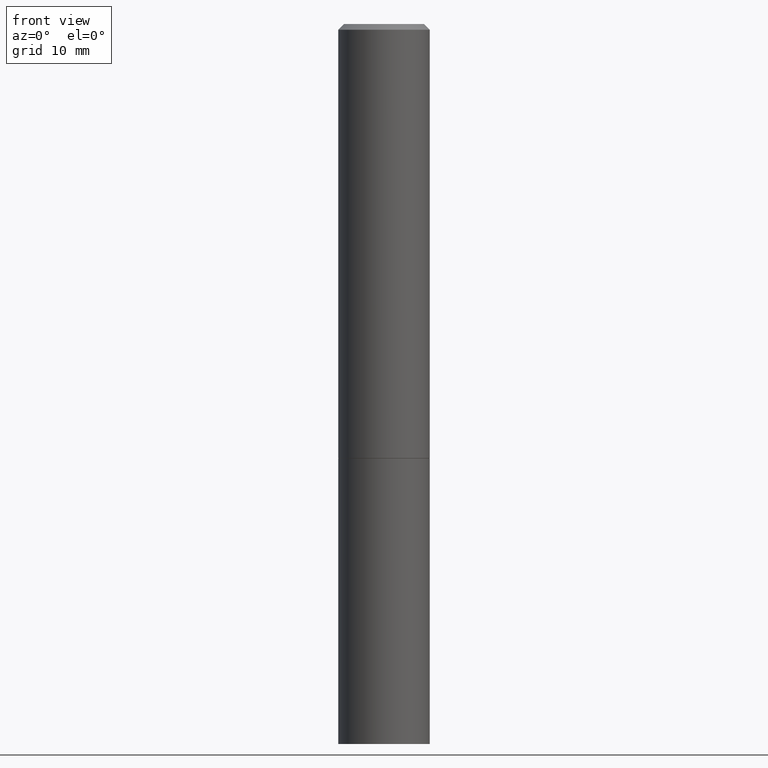
[diagram: clean part render]
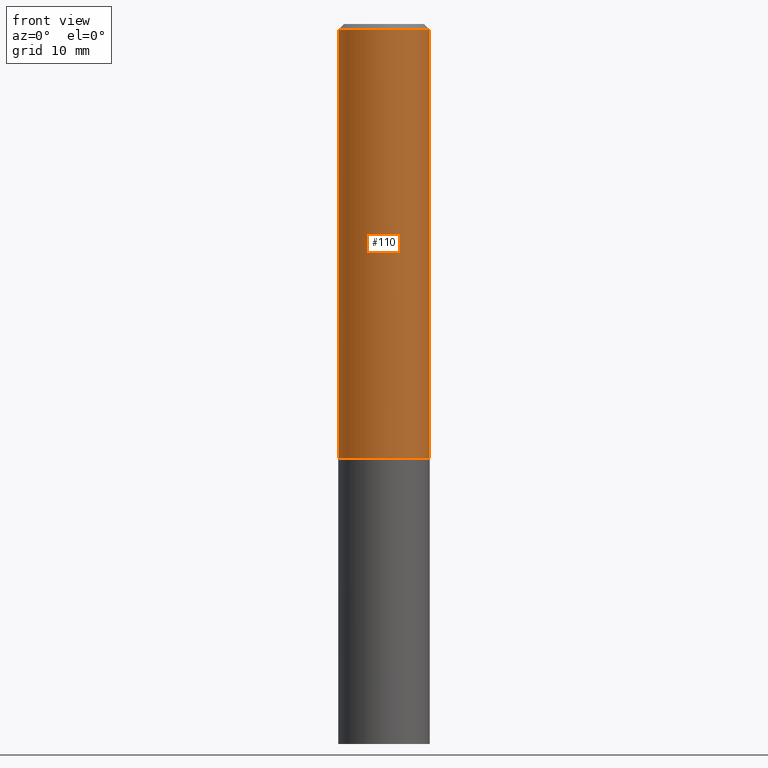
[diagram: same view with one face highlighted and labeled with its STEP entity id]
A machine part, front view. The second image highlights one B-rep face of the part: STEP entity #110.
In plain terms, the highlighted cylindrical surface (partial cylindrical patch) has radius 4.0005 mm, axis along (-0, 0, 1).
Its self-contained STEP definition (entity closure, byte-faithful):
#22 = ORIENTED_EDGE ( 'NONE', *, *, #103, .T. ) ;
#25 = VERTEX_POINT ( 'NONE', #62 ) ;
#37 = CARTESIAN_POINT ( 'NONE',  ( -0.1575000000000000011, -1.525692305351524236E-15, -1.495000000000000329 ) ) ;
#40 = DIRECTION ( 'NONE',  ( -2.445468806185136597E-29, 3.491481338843145583E-15, 1.000000000000000000 ) ) ;
#56 = AXIS2_PLACEMENT_3D ( 'NONE', #116, #320, #267 ) ;
#60 = DIRECTION ( 'NONE',  ( -2.445468806185136877E-29, 3.491481338843145188E-15, 1.000000000000000000 ) ) ;
#62 = CARTESIAN_POINT ( 'NONE',  ( -0.1574999999999998346, 1.029986994958722604E-15, -0.02000000000000003511 ) ) ;
#63 = CYLINDRICAL_SURFACE ( 'NONE', #56, 0.1574999999999998901 ) ;
#69 = EDGE_CURVE ( 'NONE', #141, #220, #76, .T. ) ;
#76 = CIRCLE ( 'NONE', #252, 0.1575000000000000011 ) ;
#92 = FACE_OUTER_BOUND ( 'NONE', #303, .T. ) ;
#98 = CARTESIAN_POINT ( 'NONE',  ( 0.1575000000000000011, -6.319581223306091410E-15, -1.495000000000000329 ) ) ;
#103 = EDGE_CURVE ( 'NONE', #220, #305, #204, .T. ) ;
#104 = ORIENTED_EDGE ( 'NONE', *, *, #162, .F. ) ;
#110 = ADVANCED_FACE ( 'NONE', ( #92 ), #63, .T. ) ;
#116 = CARTESIAN_POINT ( 'NONE',  ( 0.000000000000000000, 0.000000000000000000, 0.000000000000000000 ) ) ;
#119 = LINE ( 'NONE', #235, #325 ) ;
#130 = AXIS2_PLACEMENT_3D ( 'NONE', #300, #40, #154 ) ;
#141 = VERTEX_POINT ( 'NONE', #37 ) ;
#154 = DIRECTION ( 'NONE',  ( 1.000000000000000000, -6.982962677686265922E-15, 0.000000000000000000 ) ) ;
#162 = EDGE_CURVE ( 'NONE', #141, #25, #119, .T. ) ;
#173 = ORIENTED_EDGE ( 'NONE', *, *, #69, .T. ) ;
#183 = DIRECTION ( 'NONE',  ( -2.445468806185136877E-29, 3.491481338843145188E-15, 1.000000000000000000 ) ) ;
#204 = LINE ( 'NONE', #231, #302 ) ;
#207 = DIRECTION ( 'NONE',  ( -2.445468806185136597E-29, 3.491481338843145583E-15, 1.000000000000000000 ) ) ;
#220 = VERTEX_POINT ( 'NONE', #98 ) ;
#231 = CARTESIAN_POINT ( 'NONE',  ( 0.1574999999999998901, -1.099816621735586297E-15, 7.679978421878593829E-30 ) ) ;
#235 = CARTESIAN_POINT ( 'NONE',  ( -0.1574999999999998901, 1.119104808822157012E-15, -7.747322767151471379E-30 ) ) ;
#252 = AXIS2_PLACEMENT_3D ( 'NONE', #341, #207, #350 ) ;
#267 = DIRECTION ( 'NONE',  ( 1.000000000000000000, -6.982962677686266711E-15, 4.876176775795935793E-29 ) ) ;
#294 = CARTESIAN_POINT ( 'NONE',  ( 0.1574999999999998346, -1.150358061425878091E-15, -0.02000000000000003511 ) ) ;
#300 = CARTESIAN_POINT ( 'NONE',  ( 4.890937612370281041E-31, -6.982962677686302702E-17, -0.02000000000000003511 ) ) ;
#302 = VECTOR ( 'NONE', #183, 39.37007874015748143 ) ;
#303 = EDGE_LOOP ( 'NONE', ( #104, #173, #22, #364 ) ) ;
#305 = VERTEX_POINT ( 'NONE', #294 ) ;
#316 = CIRCLE ( 'NONE', #130, 0.1574999999999998346 ) ;
#320 = DIRECTION ( 'NONE',  ( -2.445468806185136597E-29, 3.491481338843145583E-15, 1.000000000000000000 ) ) ;
#325 = VECTOR ( 'NONE', #60, 39.37007874015748143 ) ;
#332 = EDGE_CURVE ( 'NONE', #25, #305, #316, .T. ) ;
#341 = CARTESIAN_POINT ( 'NONE',  ( 3.655975865246779683E-29, -5.219764601570503930E-15, -1.495000000000000329 ) ) ;
#350 = DIRECTION ( 'NONE',  ( 1.000000000000000000, -6.982962677686268288E-15, 0.000000000000000000 ) ) ;
#364 = ORIENTED_EDGE ( 'NONE', *, *, #332, .F. ) ;